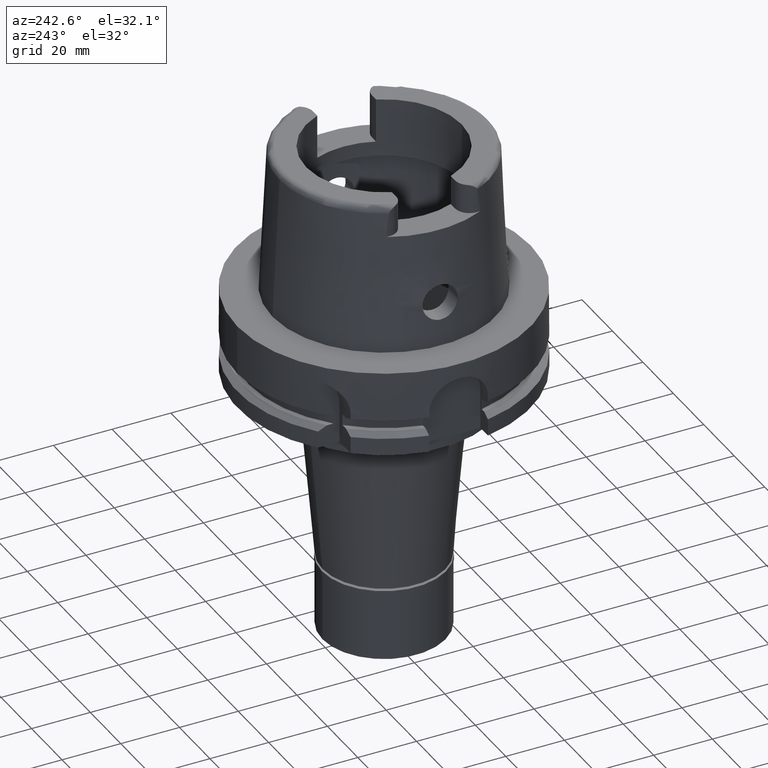
[diagram: clean part render]
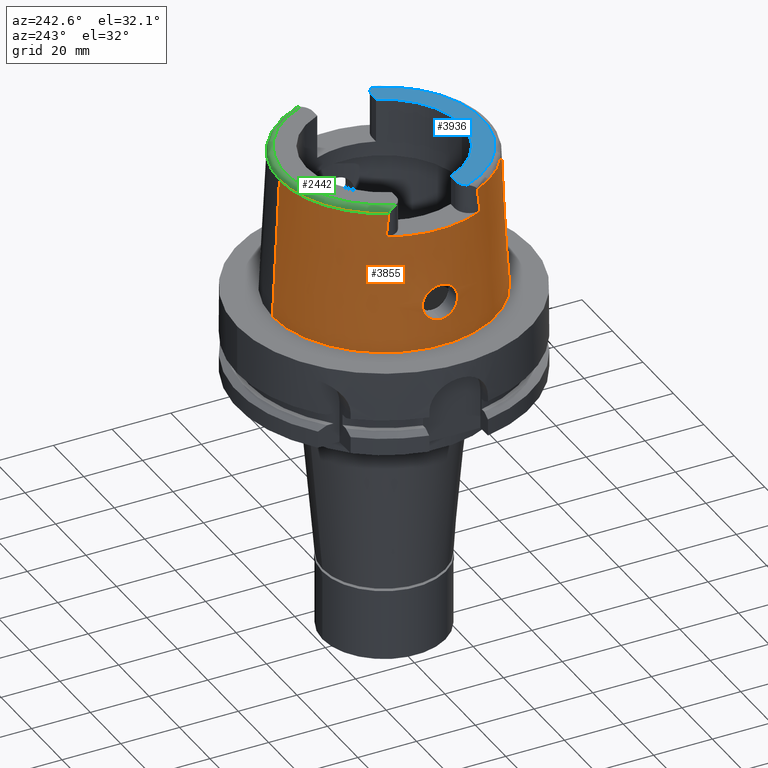
[diagram: same view with three faces highlighted in distinct colors, each labeled with its STEP entity id]
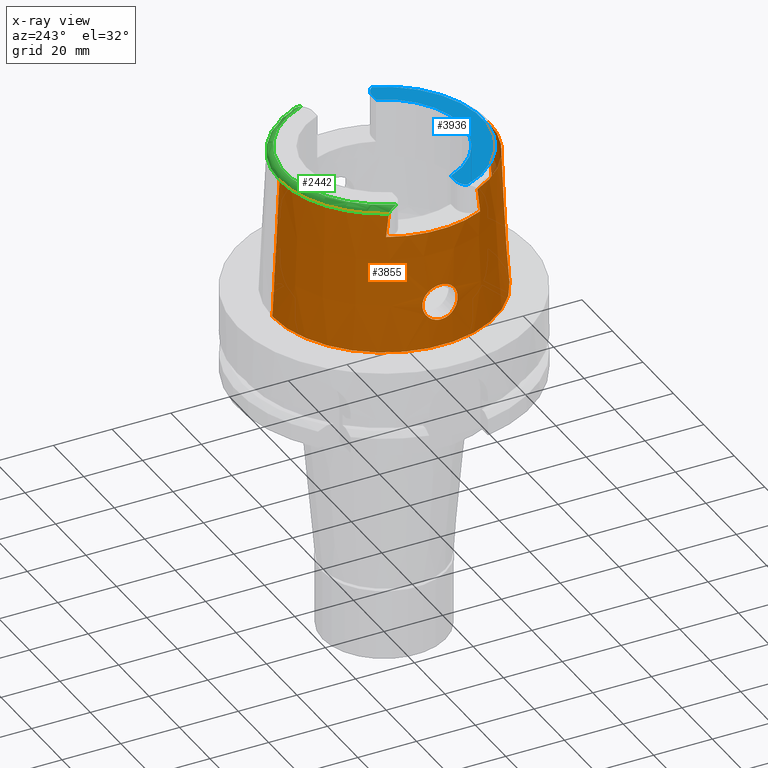
[diagram: x-ray of the same camera — body ghosted, the three highlighted faces saturated]
A machine part, auxiliary view with three faces highlighted in distinct colors.
The next image is the same camera in x-ray (body ghosted, the three faces saturated) — at least one of them is partly hidden behind the body in this view.
Their STEP definitions:

[orange] entity #3855 — the highlighted conical surface has half-angle 2.862 deg.
#74 = CARTESIAN_POINT ( 'NONE',  ( -36.82323053254182099, -5.928898446719235160, 14.05820263418802440 ) ) ;
#93 = DIRECTION ( 'NONE',  ( -5.154182075159067383E-05, 0.04993927430816067631, -0.9987522546783135224 ) ) ;
#99 = CARTESIAN_POINT ( 'NONE',  ( -36.78806355114863891, -4.334804514508003415, 19.14860261943403330 ) ) ;
#125 = CARTESIAN_POINT ( 'NONE',  ( -36.78458644027435298, -5.988938491142030252, 14.62432687633927841 ) ) ;
#147 = CARTESIAN_POINT ( 'NONE',  ( -36.94998175923002037, 0.3625530828962160723, 20.99999999999999645 ) ) ;
#152 = CARTESIAN_POINT ( 'NONE',  ( 0.0000000000000000000, 0.0000000000000000000, 24.04993926899999934 ) ) ;
#154 = CARTESIAN_POINT ( 'NONE',  ( -36.71772473533123815, -5.806545509361297874, 16.52425293398086481 ) ) ;
#159 = DIRECTION ( 'NONE',  ( 0.0000000000000000000, 0.0000000000000000000, -1.000000000000000000 ) ) ;
#160 = DIRECTION ( 'NONE',  ( 0.0000000000000000000, 0.0000000000000000000, -1.000000000000000000 ) ) ;
#174 = CARTESIAN_POINT ( 'NONE',  ( -37.12651440330315467, 4.772817024837427979, 11.35867736530579108 ) ) ;
#180 = CARTESIAN_POINT ( 'NONE',  ( -36.71866671528340476, -5.559942427495455419, 17.25545552190173737 ) ) ;
#197 = CARTESIAN_POINT ( 'NONE',  ( -36.89727382803676647, 5.729162100124217893, 13.21477445473619561 ) ) ;
#207 = ORIENTED_EDGE ( 'NONE', *, *, #4300, .T. ) ;
#231 = CARTESIAN_POINT ( 'NONE',  ( -36.75584463476618424, 4.819543727734532546, 18.59512418605630302 ) ) ;
#259 = CARTESIAN_POINT ( 'NONE',  ( -36.79474497173109881, 4.232642058124912232, 19.25263360903638343 ) ) ;
#278 = ORIENTED_EDGE ( 'NONE', *, *, #4580, .F. ) ;
#284 = CARTESIAN_POINT ( 'NONE',  ( -36.85212044561652078, 5.861051677551132322, 13.70146080967732161 ) ) ;
#316 = CARTESIAN_POINT ( 'NONE',  ( -37.45410590421445107, 2.329128466138336684, 9.470508544732272327 ) ) ;
#349 = CARTESIAN_POINT ( 'NONE',  ( -37.31960718106078190, 3.599675741247676974, 10.18345998590923784 ) ) ;
#357 = CARTESIAN_POINT ( 'NONE',  ( -37.54240590495769681, -0.7521085881209685908, 9.034675656103059893 ) ) ;
#414 = CARTESIAN_POINT ( 'NONE',  ( -36.89521840593706514, 2.445992661388042055, 20.48121353608349793 ) ) ;
#436 = CARTESIAN_POINT ( 'NONE',  ( -32.24999999999000266, 15.99793480980999938, 40.00000000000000000 ) ) ;
#439 = CARTESIAN_POINT ( 'NONE',  ( -37.24834836089080170, -4.072646202234709634, 10.59326355189902102 ) ) ;
#463 = CARTESIAN_POINT ( 'NONE',  ( -37.14434780643751566, -4.681249994448835494, 11.24558708217966974 ) ) ;
#486 = CARTESIAN_POINT ( 'NONE',  ( -36.90004238906206524, -2.329351892019352999, 20.52945065228578159 ) ) ;
#505 = EDGE_CURVE ( 'NONE', #648, #2607, #2250, .T. ) ;
#512 = CARTESIAN_POINT ( 'NONE',  ( -36.71887498289657970, -5.552344025285385953, 17.27409337895980457 ) ) ;
#529 = CARTESIAN_POINT ( 'NONE',  ( -36.91472681731986683, 1.953215262175065803, 20.67484332005664172 ) ) ;
#534 = CARTESIAN_POINT ( 'NONE',  ( -36.77996457801942398, -4.459916177920443481, 19.01400444066961626 ) ) ;
#561 = CARTESIAN_POINT ( 'NONE',  ( -36.88068028734917192, -2.761346901053683744, 20.32774199932568493 ) ) ;
#584 = CARTESIAN_POINT ( 'NONE',  ( -37.07376642524501875, 5.030576920797455998, 11.72990883013981289 ) ) ;
#592 = CARTESIAN_POINT ( 'NONE',  ( -37.13272031619708002, -4.742310806695980041, 11.32301671466228221 ) ) ;
#615 = CARTESIAN_POINT ( 'NONE',  ( -36.72001506501114676, 5.514389833981616640, 17.36480799635775440 ) ) ;
#632 = B_SPLINE_CURVE_WITH_KNOTS ( 'NONE', 3,
 ( #5565, #2467, #357, #1661, #1304, #3376, #4250, #4651, #853, #800, #2048, #3822, #5504, #823, #1628, #3405, #5134, #1272, #2971, #2158, #439, #2133, #5166, #3005, #4733, #2574, #4306, #3876, #463, #592, #1407, #2264, #1429, #4437, #1773, #3981, #2294, #3482, #2651, #985, #5218, #962, #74, #4834, #4361, #125, #1845, #3530, #2674, #1356, #5275, #3583, #3054, #3136, #154, #907, #4386, #4011, #3110, #3557, #180, #5298, #512, #4782, #4859, #3035, #935, #3925, #2210, #534, #1008, #99, #2235, #3503, #3949, #1793, #4756, #5242, #2593, #4408, #2699, #1818, #4813, #561, #1865, #1334, #4334, #1377, #486, #2185, #3904, #2621 ),
 .UNSPECIFIED., .F., .F.,
 ( 4, 2, 2, 1, 1, 1, 1, 2, 2, 2, 2, 2, 1, 1, 1, 2, 2, 2, 2, 2, 2, 1, 1, 2, 2, 2, 2, 2, 1, 2, 2, 2, 2, 1, 1, 1, 1, 2, 2, 2, 2, 2, 1, 1, 2, 2, 2, 2, 2, 2, 1, 1, 2, 2, 4 ),
 ( 0.0000000000000000000, 0.06249999999997644939, 0.09374999999996466715, 0.1093749999999588107, 0.1171874999999558548, 0.1210937499999544115, 0.1230468749999537176, 0.1240234374999534123, 0.1249999999999530931, 0.1874999999999317490, 0.2187499999999210909, 0.2343749999999158729, 0.2421874999999132916, 0.2460937499999119871, 0.2480468749999114042, 0.2490234374999110989, 0.2499999999999108491, 0.2812499999999007461, 0.2968749999998956945, 0.3124999999998906430, 0.3437499999998804290, 0.3593749999998754885, 0.3671874999998731570, 0.3710937499998720468, 0.3749999999998709366, 0.4374999999998541167, 0.4687499999998456235, 0.4843749999998413491, 0.4921874999998391842, 0.4960937499998379629, 0.4999999999998366862, 0.5624999999998174793, 0.5937499999998081535, 0.6093749999998038236, 0.6171874999998016031, 0.6210937499998006039, 0.6230468749998000488, 0.6240234374998000488, 0.6249999999998000488, 0.6874999999998262501, 0.7187499999998395728, 0.7343749999998464562, 0.7421874999998496758, 0.7460937499998513411, 0.7480468749998523403, 0.7499999999998533395, 0.7812499999998714362, 0.7968749999998803180, 0.8124999999998891997, 0.8437499999999069633, 0.8593749999999157341, 0.8671874999999202860, 0.8710937499999227285, 0.8749999999999250599, 1.000000000000000000 ),
 .UNSPECIFIED. ) ;
#641 = CARTESIAN_POINT ( 'NONE',  ( -36.84040567949706713, 3.503068769462873711, 19.87516859753196741 ) ) ;
#648 = VERTEX_POINT ( 'NONE', #3970 ) ;
#657 = DIRECTION ( 'NONE',  ( 0.0000000000000000000, 0.0000000000000000000, 1.000000000000000000 ) ) ;
#665 = CARTESIAN_POINT ( 'NONE',  ( -0.002482252536761000127, -35.59494263424999616, 48.09987853799000135 ) ) ;
#668 = ORIENTED_EDGE ( 'NONE', *, *, #4220, .T. ) ;
#675 = CARTESIAN_POINT ( 'NONE',  ( -37.03007041005652411, 5.228520862677724423, 12.05485319187040183 ) ) ;
#706 = CARTESIAN_POINT ( 'NONE',  ( -36.94750774145884975, 5.557276259539285057, 12.73798230509179419 ) ) ;
#768 = AXIS2_PLACEMENT_3D ( 'NONE', #813, #2959, #3274 ) ;
#792 = CARTESIAN_POINT ( 'NONE',  ( -37.55000165825000380, 0.7490178607477463446, 9.000000000000019540 ) ) ;
#800 = CARTESIAN_POINT ( 'NONE',  ( -37.46214979876041440, -2.230592256434670961, 9.430014596436990360 ) ) ;
#813 = CARTESIAN_POINT ( 'NONE',  ( 0.0000000000000000000, 0.0000000000000000000, 40.00000000000000000 ) ) ;
#815 = CARTESIAN_POINT ( 'NONE',  ( -37.20947559739986588, 4.311750673023866831, 10.82748602044353348 ) ) ;
#823 = CARTESIAN_POINT ( 'NONE',  ( -37.43522730255040187, -2.562830791563071919, 9.565764569917137194 ) ) ;
#853 = CARTESIAN_POINT ( 'NONE',  ( -37.46539505468363984, -2.189546546671889526, 9.413677403951398404 ) ) ;
#881 = CARTESIAN_POINT ( 'NONE',  ( -32.25000136840999687, 15.06443227098000115, 48.09991931569999934 ) ) ;
#901 = B_SPLINE_CURVE_WITH_KNOTS ( 'NONE', 3,
 ( #881, #3479, #3946, #436 ),
 .UNSPECIFIED., .F., .F.,
 ( 4, 4 ),
 ( 0.0000000000000000000, 1.000000000000000000 ),
 .UNSPECIFIED. ) ;
#907 = CARTESIAN_POINT ( 'NONE',  ( -36.71651103040085218, -5.721565896731878098, 16.80928525366041626 ) ) ;
#935 = CARTESIAN_POINT ( 'NONE',  ( -36.75586994245404782, -4.838335472143019622, 18.55471004757326270 ) ) ;
#962 = CARTESIAN_POINT ( 'NONE',  ( -36.87049377223768687, -5.817060440741482985, 13.47780286828509233 ) ) ;
#967 = CARTESIAN_POINT ( 'NONE',  ( 0.0000000000000000000, 0.0000000000000000000, 48.09987853799000135 ) ) ;
#974 = ORIENTED_EDGE ( 'NONE', *, *, #2712, .F. ) ;
#984 = DIRECTION ( 'NONE',  ( 0.0000000000000000000, -1.000000000000000000, 0.0000000000000000000 ) ) ;
#985 = CARTESIAN_POINT ( 'NONE',  ( -36.95600250641084017, -5.526063157198407794, 12.66262127946670901 ) ) ;
#1001 = CARTESIAN_POINT ( 'NONE',  ( -36.92226913909367170, 5.646499751244001608, 12.97028938156317857 ) ) ;
#1008 = CARTESIAN_POINT ( 'NONE',  ( -36.78361863460155945, -4.403344612032119798, 19.07629590768654637 ) ) ;
#1033 = CARTESIAN_POINT ( 'NONE',  ( -36.75505347406960510, 5.997716341744668611, 15.17710992440290063 ) ) ;
#1062 = CARTESIAN_POINT ( 'NONE',  ( -36.71608582468578419, 5.811464284901324717, 16.54260245714784361 ) ) ;
#1080 = ORIENTED_EDGE ( 'NONE', *, *, #2036, .F. ) ;
#1085 = ORIENTED_EDGE ( 'NONE', *, *, #4897, .F. ) ;
#1086 = CARTESIAN_POINT ( 'NONE',  ( -36.71962094226965689, 5.526971895336172835, 17.33510102494406269 ) ) ;
#1116 = CARTESIAN_POINT ( 'NONE',  ( -36.90703009047484784, 5.697815864059324831, 13.11701489096465956 ) ) ;
#1148 = CARTESIAN_POINT ( 'NONE',  ( -37.42163854930025479, 2.690703665676798195, 9.636361813314190172 ) ) ;
#1159 = CARTESIAN_POINT ( 'NONE',  ( 0.0000000000000000000, 0.0000000000000000000, 1.023181539494999863E-12 ) ) ;
#1188 = VERTEX_POINT ( 'NONE', #4384 ) ;
#1205 = CARTESIAN_POINT ( 'NONE',  ( -37.19924154122887927, 4.371588547730605789, 10.88983201291727276 ) ) ;
#1209 = B_SPLINE_CURVE_WITH_KNOTS ( 'NONE', 3,
 ( #5454, #4471, #1941, #1495 ),
 .UNSPECIFIED., .F., .F.,
 ( 4, 4 ),
 ( 0.0000000000000000000, 1.000000000000000000 ),
 .UNSPECIFIED. ) ;
#1272 = CARTESIAN_POINT ( 'NONE',  ( -37.28906989596441690, -3.798679550567368501, 10.35440113730646772 ) ) ;
#1304 = CARTESIAN_POINT ( 'NONE',  ( -37.51012395346545247, -1.514929515691207484, 9.191016675842400119 ) ) ;
#1334 = CARTESIAN_POINT ( 'NONE',  ( -36.89414134896049546, -2.467613667936710886, 20.46949269435930674 ) ) ;
#1356 = CARTESIAN_POINT ( 'NONE',  ( -36.76648188795494576, -5.999790168387596268, 14.94493406312051498 ) ) ;
#1377 = CARTESIAN_POINT ( 'NONE',  ( -36.89910512635219675, -2.351632174535876363, 20.52000609469344283 ) ) ;
#1407 = CARTESIAN_POINT ( 'NONE',  ( -37.10938749677767134, -4.860543352740099188, 11.48079040350074465 ) ) ;
#1424 = CARTESIAN_POINT ( 'NONE',  ( -36.72203813082273882, 5.457135337629697602, 17.49432021524069469 ) ) ;
#1429 = CARTESIAN_POINT ( 'NONE',  ( -37.06280216228815760, -5.081531646634132926, 11.80379148822379420 ) ) ;
#1451 = CARTESIAN_POINT ( 'NONE',  ( -36.81702524797315590, 3.889233919126076966, 19.56985223358480042 ) ) ;
#1464 = DIRECTION ( 'NONE',  ( 0.0000000000000000000, -1.000000000000000000, 0.0000000000000000000 ) ) ;
#1467 = CIRCLE ( 'NONE', #768, 35.99995025243999436 ) ;
#1481 = CARTESIAN_POINT ( 'NONE',  ( -36.74213964348327011, 5.980926611880625465, 15.48764060818529842 ) ) ;
#1495 = CARTESIAN_POINT ( 'NONE',  ( -32.24999491821000674, -15.06448486686999821, 48.09973212223000161 ) ) ;
#1509 = CARTESIAN_POINT ( 'NONE',  ( -36.86921435064590469, 5.814922362280488422, 13.50735389710117040 ) ) ;
#1535 = CARTESIAN_POINT ( 'NONE',  ( -36.73210532583734533, 5.234034322780340531, 17.93912450253122870 ) ) ;
#1593 = ORIENTED_EDGE ( 'NONE', *, *, #1601, .T. ) ;
#1597 = CARTESIAN_POINT ( 'NONE',  ( -37.51912376612243349, 1.534334099841992982, 9.142233514533149474 ) ) ;
#1601 = EDGE_CURVE ( 'NONE', #1188, #2624, #5186, .T. ) ;
#1628 = CARTESIAN_POINT ( 'NONE',  ( -37.40392699024293677, -2.880923400469384887, 9.722350364813502566 ) ) ;
#1661 = CARTESIAN_POINT ( 'NONE',  ( -37.51961864508080424, -1.324043857284014525, 9.144694856111923897 ) ) ;
#1662 = CARTESIAN_POINT ( 'NONE',  ( -36.90494167551282345, 2.209907510113605866, 20.57830793970426342 ) ) ;
#1680 = CARTESIAN_POINT ( 'NONE',  ( -37.44036453825258093, 2.488648057273405989, 9.540274471321605887 ) ) ;
#1738 = EDGE_CURVE ( 'NONE', #4501, #4208, #1467, .T. ) ;
#1758 = EDGE_LOOP ( 'NONE', ( #278, #4309 ) ) ;
#1773 = CARTESIAN_POINT ( 'NONE',  ( -37.00699242216460760, -5.324828791349577095, 12.23305031580818536 ) ) ;
#1793 = CARTESIAN_POINT ( 'NONE',  ( -36.80167286437482232, -4.125561637143138505, 19.36105291350262547 ) ) ;
#1811 = CARTESIAN_POINT ( 'NONE',  ( -36.90196328842325357, 2.283153517364590268, 20.54862627285229593 ) ) ;
#1818 = CARTESIAN_POINT ( 'NONE',  ( -36.85852667640532587, -3.191917643932927540, 20.08423192527659396 ) ) ;
#1839 = CARTESIAN_POINT ( 'NONE',  ( -36.93380744896299461, 1.318756057433612350, 20.85656974759320903 ) ) ;
#1845 = CARTESIAN_POINT ( 'NONE',  ( -36.77646455067684883, -5.995478475698588383, 14.76258373251643619 ) ) ;
#1859 = CARTESIAN_POINT ( 'NONE',  ( -36.72707934913572814, 5.924718354311669266, 15.96741784713380596 ) ) ;
#1865 = CARTESIAN_POINT ( 'NONE',  ( -36.88702728852544510, -2.627696777744658707, 20.39563734788138305 ) ) ;
#1887 = CARTESIAN_POINT ( 'NONE',  ( -36.93937016641403659, 5.586668613508995129, 12.81131469429450220 ) ) ;
#1900 = ORIENTED_EDGE ( 'NONE', *, *, #1738, .T. ) ;
#1925 = CARTESIAN_POINT ( 'NONE',  ( -36.72427023903356513, 5.401041224605394930, 17.61468763097502332 ) ) ;
#1941 = CARTESIAN_POINT ( 'NONE',  ( -32.25000000000000000, -15.37363593509190451, 45.48304330232944892 ) ) ;
#1949 = DIRECTION ( 'NONE',  ( 5.154182075151068004E-05, -0.04993927430816067631, -0.9987522546783135224 ) ) ;
#1956 = CARTESIAN_POINT ( 'NONE',  ( -37.10339373912722749, 4.890162636329169032, 11.51785665528968572 ) ) ;
#1980 = CARTESIAN_POINT ( 'NONE',  ( -36.83106466261710921, 3.661232658126593709, 19.75753455909572764 ) ) ;
#1981 = B_SPLINE_CURVE_WITH_KNOTS ( 'NONE', 3,
 ( #2073, #147, #2648, #1839, #3793, #2551, #529, #5540, #1662, #4284, #2946, #1811, #3378, #414, #2109, #3824, #2136, #2752, #4919, #3243, #4062, #3164, #4483, #641, #1980, #1451, #2339, #5351, #4550, #4887, #259, #2400, #2692, #231, #2314, #1535, #3689, #1925, #1424, #3130, #615, #1086, #2726, #4517, #3664, #1062, #1859, #2372, #1481, #4975, #1033, #3637, #4461, #4032, #5382, #4118, #284, #1509, #197, #1116, #1001, #4431, #1887, #2816, #3609, #706, #3219, #4944, #5405, #2287, #675, #2780, #3193, #4852, #584, #4095, #4005, #1956, #174, #3576, #5318, #1205, #815, #5555, #2908, #2040, #4641, #349, #3275, #4178, #1148, #2062, #1680, #3752, #3776, #316, #5059, #5496, #1597, #792, #2484 ),
 .UNSPECIFIED., .F., .F.,
 ( 4, 2, 2, 1, 1, 1, 1, 2, 2, 2, 2, 1, 1, 2, 2, 2, 1, 1, 1, 2, 2, 2, 2, 2, 1, 1, 2, 2, 2, 2, 1, 1, 2, 2, 2, 2, 2, 1, 1, 1, 2, 2, 2, 2, 1, 1, 2, 2, 2, 1, 1, 1, 2, 2, 2, 2, 2, 1, 1, 2, 2, 4 ),
 ( 0.0000000000000000000, 0.06249999999998158418, 0.09374999999997232769, 0.1093749999999676231, 0.1171874999999652778, 0.1210937499999640982, 0.1230468749999634875, 0.1240234374999631961, 0.1249999999999628908, 0.1562499999999565625, 0.1718749999999532874, 0.1796874999999517053, 0.1835937499999510392, 0.1855468749999505673, 0.1874999999999500955, 0.2187499999999438782, 0.2343749999999405753, 0.2421874999999386602, 0.2460937499999379108, 0.2480468749999377442, 0.2499999999999375500, 0.3124999999999294453, 0.3437499999999253375, 0.3593749999999232836, 0.3671874999999220623, 0.3710937499999216738, 0.3730468749999217848, 0.3749999999999218403, 0.4374999999999217293, 0.4687499999999216183, 0.4843749999999215627, 0.4921874999999216738, 0.4960937499999218958, 0.4999999999999220623, 0.5624999999999246159, 0.5937499999999259481, 0.6093749999999266143, 0.6171874999999269473, 0.6210937499999271694, 0.6230468749999271694, 0.6240234374999272804, 0.6249999999999272804, 0.6562499999999306111, 0.6718749999999323874, 0.6796874999999333866, 0.6835937499999339417, 0.6855468749999342748, 0.6874999999999344968, 0.7187499999999399369, 0.7343749999999428235, 0.7421874999999442668, 0.7460937499999450440, 0.7480468749999453770, 0.7499999999999455991, 0.8124999999999582556, 0.8437499999999644729, 0.8593749999999675815, 0.8671874999999691358, 0.8710937499999699130, 0.8730468749999704681, 0.8749999999999710232, 1.000000000000000000 ),
 .UNSPECIFIED. ) ;
#2009 = VERTEX_POINT ( 'NONE', #2355 ) ;
#2036 = EDGE_CURVE ( 'NONE', #4501, #2607, #1209, .T. ) ;
#2040 = CARTESIAN_POINT ( 'NONE',  ( -37.21805258336363664, 4.261073852434161147, 10.77584950298933819 ) ) ;
#2048 = CARTESIAN_POINT ( 'NONE',  ( -37.46074228490572722, -2.248166542641697685, 9.437106227247255674 ) ) ;
#2062 = CARTESIAN_POINT ( 'NONE',  ( -37.42938732668184088, 2.609458096537846217, 9.596425585937925717 ) ) ;
#2073 = CARTESIAN_POINT ( 'NONE',  ( -36.94998175923000616, 0.0000000000000000000, 21.00000000000000000 ) ) ;
#2094 = VECTOR ( 'NONE', #93, 1000.000000000000227 ) ;
#2109 = CARTESIAN_POINT ( 'NONE',  ( -36.88778730094655600, 2.610192355735712955, 20.40610607300494905 ) ) ;
#2133 = CARTESIAN_POINT ( 'NONE',  ( -37.23677949613533400, -4.145916836684778062, 10.66262233058566267 ) ) ;
#2136 = CARTESIAN_POINT ( 'NONE',  ( -36.87024605534370636, 2.963125089998518202, 20.21837617417015665 ) ) ;
#2158 = CARTESIAN_POINT ( 'NONE',  ( -37.25799470659903534, -4.009568889744111075, 10.53608802683976542 ) ) ;
#2185 = CARTESIAN_POINT ( 'NONE',  ( -36.93367502611393860, -1.520510553490664885, 20.86597942756079149 ) ) ;
#2202 = EDGE_CURVE ( 'NONE', #3857, #3388, #632, .T. ) ;
#2210 = CARTESIAN_POINT ( 'NONE',  ( -36.77286429403746126, -4.570216296435477332, 18.88914628922124805 ) ) ;
#2235 = CARTESIAN_POINT ( 'NONE',  ( -36.79000748335477056, -4.304880711938232629, 19.17949860754104208 ) ) ;
#2250 = CIRCLE ( 'NONE', #4146, 35.59494289391000166 ) ;
#2264 = CARTESIAN_POINT ( 'NONE',  ( -37.09750579728164155, -4.918543411384063369, 11.56236143669027605 ) ) ;
#2287 = CARTESIAN_POINT ( 'NONE',  ( -37.01852366502950531, 5.277949285620158193, 12.14466026285606226 ) ) ;
#2294 = CARTESIAN_POINT ( 'NONE',  ( -36.97179117213022437, -5.466339013412229164, 12.52541676300970330 ) ) ;
#2314 = CARTESIAN_POINT ( 'NONE',  ( -36.73723323953743858, 5.138946338232154076, 18.10313719434839186 ) ) ;
#2339 = CARTESIAN_POINT ( 'NONE',  ( -36.80999856832018224, 4.000924703224850276, 19.47320503343160070 ) ) ;
#2355 = CARTESIAN_POINT ( 'NONE',  ( 0.0000000000000000000, -38.00001658251999714, 6.892264536873000076E-13 ) ) ;
#2359 = DIRECTION ( 'NONE',  ( 0.0000000000000000000, 1.000000000000000000, 0.0000000000000000000 ) ) ;
#2372 = CARTESIAN_POINT ( 'NONE',  ( -36.73221861327886018, 5.952826895809218755, 15.77521477433226771 ) ) ;
#2378 = CIRCLE ( 'NONE', #3825, 35.59494289391000166 ) ;
#2400 = CARTESIAN_POINT ( 'NONE',  ( -36.79422715349652862, 4.240327904510042600, 19.24497450744234328 ) ) ;
#2424 = CARTESIAN_POINT ( 'NONE',  ( -32.25000136840999687, 15.06443227098000115, 48.09991931569999934 ) ) ;
#2467 = CARTESIAN_POINT ( 'NONE',  ( -37.55000165825001091, -0.3718859561172882522, 8.999999999999992895 ) ) ;
#2484 = CARTESIAN_POINT ( 'NONE',  ( -37.55000165825000380, 1.571614468376999917E-13, 9.000000000000000000 ) ) ;
#2527 = FACE_OUTER_BOUND ( 'NONE', #3162, .T. ) ;
#2551 = CARTESIAN_POINT ( 'NONE',  ( -36.91965492747934974, 1.806464489154442354, 20.72250540861613999 ) ) ;
#2574 = CARTESIAN_POINT ( 'NONE',  ( -37.22571532401068595, -4.214540022104334760, 10.72943910446142191 ) ) ;
#2579 = FACE_BOUND ( 'NONE', #1758, .T. ) ;
#2593 = CARTESIAN_POINT ( 'NONE',  ( -36.82970693592993428, -3.673740623803267713, 19.74482772743009207 ) ) ;
#2607 = VERTEX_POINT ( 'NONE', #5069 ) ;
#2621 = CARTESIAN_POINT ( 'NONE',  ( -36.94998175923000616, 0.0000000000000000000, 21.00000000000000000 ) ) ;
#2624 = VERTEX_POINT ( 'NONE', #4753 ) ;
#2648 = CARTESIAN_POINT ( 'NONE',  ( -36.94593818166325150, 0.7403705539163906169, 20.96707285297079792 ) ) ;
#2651 = CARTESIAN_POINT ( 'NONE',  ( -36.95849678818203188, -5.516754172050340799, 12.64075052970119906 ) ) ;
#2674 = CARTESIAN_POINT ( 'NONE',  ( -36.76888135779360312, -5.999202468009512401, 14.89958053020721529 ) ) ;
#2692 = CARTESIAN_POINT ( 'NONE',  ( -36.77255577042334522, 4.560823762136021919, 18.92335781838107422 ) ) ;
#2699 = CARTESIAN_POINT ( 'NONE',  ( -36.84417110679228813, -3.433609880519924218, 19.92135767012609548 ) ) ;
#2712 = EDGE_CURVE ( 'NONE', #4656, #4208, #901, .T. ) ;
#2726 = CARTESIAN_POINT ( 'NONE',  ( -36.71936659912462630, 5.535288237586788895, 17.31531839179066168 ) ) ;
#2752 = CARTESIAN_POINT ( 'NONE',  ( -36.86288670285292568, 3.101921047889937277, 20.13624141383451516 ) ) ;
#2780 = CARTESIAN_POINT ( 'NONE',  ( -37.04827319182398782, 5.147742072203705277, 11.91721204243837740 ) ) ;
#2816 = CARTESIAN_POINT ( 'NONE',  ( -36.94410147018575685, 5.569637299367250272, 12.76853320077444742 ) ) ;
#2908 = CARTESIAN_POINT ( 'NONE',  ( -37.21679250492024238, 4.268545163422240662, 10.78340485914337954 ) ) ;
#2946 = CARTESIAN_POINT ( 'NONE',  ( -36.90246478681287812, 2.270949496965292358, 20.55363231424932025 ) ) ;
#2959 = DIRECTION ( 'NONE',  ( 0.0000000000000000000, 0.0000000000000000000, -1.000000000000000000 ) ) ;
#2971 = CARTESIAN_POINT ( 'NONE',  ( -37.27692763257257980, -3.883202916129207427, 10.42470260473987764 ) ) ;
#2974 = CARTESIAN_POINT ( 'NONE',  ( -32.24999876011999334, -15.99794043148000000, 40.00000000000000000 ) ) ;
#3005 = CARTESIAN_POINT ( 'NONE',  ( -37.22838673060392978, -4.198091024196533461, 10.71326638967439671 ) ) ;
#3035 = CARTESIAN_POINT ( 'NONE',  ( -36.74861974175637158, -4.956112430334767005, 18.38749210288566616 ) ) ;
#3054 = CARTESIAN_POINT ( 'NONE',  ( -36.73132168275584064, -5.964948906927532768, 15.75659294445787317 ) ) ;
#3110 = CARTESIAN_POINT ( 'NONE',  ( -36.71806824846890294, -5.583303181085889300, 17.19723156348164395 ) ) ;
#3124 = LINE ( 'NONE', #665, #3517 ) ;
#3130 = CARTESIAN_POINT ( 'NONE',  ( -36.72102294090885266, 5.484272630724222886, 17.43434923281128590 ) ) ;
#3136 = CARTESIAN_POINT ( 'NONE',  ( -36.72001392922916807, -5.853387202398482536, 16.33271165120686064 ) ) ;
#3162 = EDGE_LOOP ( 'NONE', ( #974, #668, #1593, #207, #1085, #4070, #1080, #1900 ) ) ;
#3164 = CARTESIAN_POINT ( 'NONE',  ( -36.85109884645161316, 3.315402656914996360, 20.00083115363363007 ) ) ;
#3193 = CARTESIAN_POINT ( 'NONE',  ( -37.05759524876443578, 5.105693507571799294, 11.84766052568536843 ) ) ;
#3219 = CARTESIAN_POINT ( 'NONE',  ( -36.94833908019818125, 5.554246825165506607, 12.73055754894398284 ) ) ;
#3243 = CARTESIAN_POINT ( 'NONE',  ( -36.85447686725796501, 3.255433226915352307, 20.04019644346395523 ) ) ;
#3274 = DIRECTION ( 'NONE',  ( -0.8958345712659759874, -0.4443876921390880197, 0.0000000000000000000 ) ) ;
#3275 = CARTESIAN_POINT ( 'NONE',  ( -37.37901893538266762, 3.101641266835791999, 9.860058148263993516 ) ) ;
#3376 = CARTESIAN_POINT ( 'NONE',  ( -37.49303350855777239, -1.800029426377532715, 9.275515853927242205 ) ) ;
#3378 = CARTESIAN_POINT ( 'NONE',  ( -36.90165384163184115, 2.290647859511804718, 20.54553499156103058 ) ) ;
#3388 = VERTEX_POINT ( 'NONE', #4024 ) ;
#3405 = CARTESIAN_POINT ( 'NONE',  ( -37.34546402760852857, -3.377013938155778217, 10.03672455033063216 ) ) ;
#3471 = AXIS2_PLACEMENT_3D ( 'NONE', #152, #5141, #984 ) ;
#3479 = CARTESIAN_POINT ( 'NONE',  ( -32.25000000000000000, 15.37357338416263985, 45.48332195153660962 ) ) ;
#3482 = CARTESIAN_POINT ( 'NONE',  ( -36.96380502776975163, -5.496748277571383845, 12.59450773625105313 ) ) ;
#3503 = CARTESIAN_POINT ( 'NONE',  ( -36.79131209770811495, -4.284808839412508341, 19.20007378079810323 ) ) ;
#3517 = VECTOR ( 'NONE', #1949, 1000.000000000000227 ) ;
#3530 = CARTESIAN_POINT ( 'NONE',  ( -36.77255751922503180, -5.997932684345628651, 14.83136030590121024 ) ) ;
#3557 = CARTESIAN_POINT ( 'NONE',  ( -36.71847806941791248, -5.567011253225900624, 17.23800388043489207 ) ) ;
#3576 = CARTESIAN_POINT ( 'NONE',  ( -37.16135052197552113, 4.585456086696408029, 11.12916731211390520 ) ) ;
#3583 = CARTESIAN_POINT ( 'NONE',  ( -36.74478041421753005, -6.000619882575237263, 15.37058923311013814 ) ) ;
#3586 = DIRECTION ( 'NONE',  ( -0.9060276961631030801, 0.4232183996300014628, 0.0000000000000000000 ) ) ;
#3609 = CARTESIAN_POINT ( 'NONE',  ( -36.94614334340285211, 5.562234521405725829, 12.75020209667641247 ) ) ;
#3637 = CARTESIAN_POINT ( 'NONE',  ( -36.75843241105401660, 5.999115404914252991, 15.10573356944298951 ) ) ;
#3664 = CARTESIAN_POINT ( 'NONE',  ( -36.71465583235838182, 5.697277598128047238, 16.92420995161979036 ) ) ;
#3689 = CARTESIAN_POINT ( 'NONE',  ( -36.72602728235146685, 5.361218751864933019, 17.69550097904032171 ) ) ;
#3752 = CARTESIAN_POINT ( 'NONE',  ( -37.44569165541255984, 2.428507131119322260, 9.513137093000617384 ) ) ;
#3776 = CARTESIAN_POINT ( 'NONE',  ( -37.45162402033803772, 2.358860455521837540, 9.483063319803074265 ) ) ;
#3793 = CARTESIAN_POINT ( 'NONE',  ( -36.92875297700454240, 1.513445603867381806, 20.80956201559139629 ) ) ;
#3822 = CARTESIAN_POINT ( 'NONE',  ( -37.45980023347200927, -2.259878942530978652, 9.441853987570146600 ) ) ;
#3824 = CARTESIAN_POINT ( 'NONE',  ( -36.87485461971291301, 2.872858800242176880, 20.26843943359907385 ) ) ;
#3825 = AXIS2_PLACEMENT_3D ( 'NONE', #4016, #159, #3586 ) ;
#3855 = ADVANCED_FACE ( 'NONE', ( #2527, #2579 ), #4000, .T. ) ;
#3857 = VERTEX_POINT ( 'NONE', #4660 ) ;
#3876 = CARTESIAN_POINT ( 'NONE',  ( -37.17911351875109460, -4.492456376756836178, 11.01795188690161531 ) ) ;
#3904 = CARTESIAN_POINT ( 'NONE',  ( -36.94998175923000616, -0.7275959662226680891, 21.00000000000000000 ) ) ;
#3925 = CARTESIAN_POINT ( 'NONE',  ( -36.76840787695926593, -4.639957764230191906, 18.80554271582764869 ) ) ;
#3946 = CARTESIAN_POINT ( 'NONE',  ( -32.25000000000000000, 15.68473281745264103, 42.78334884630327650 ) ) ;
#3949 = CARTESIAN_POINT ( 'NONE',  ( -36.79206450369854764, -4.273239621631045537, 19.21183756112960239 ) ) ;
#3970 = CARTESIAN_POINT ( 'NONE',  ( 1.065814103639999922E-14, -35.59494289391000166, 48.09987853799000135 ) ) ;
#3981 = CARTESIAN_POINT ( 'NONE',  ( -36.99059200382356494, -5.392620126817299742, 12.36614552763649044 ) ) ;
#4000 = CONICAL_SURFACE ( 'NONE', #3471, 36.79747973821000073, 0.04996004983832824653 ) ;
#4005 = CARTESIAN_POINT ( 'NONE',  ( -37.07893791181299292, 5.006200936623738329, 11.69271945909917321 ) ) ;
#4011 = CARTESIAN_POINT ( 'NONE',  ( -36.71737001751944263, -5.615079041531235049, 17.11548522742446465 ) ) ;
#4016 = CARTESIAN_POINT ( 'NONE',  ( 0.0000000000000000000, 0.0000000000000000000, 48.09987853799000135 ) ) ;
#4024 = CARTESIAN_POINT ( 'NONE',  ( -36.94998175923000616, 0.0000000000000000000, 21.00000000000000000 ) ) ;
#4032 = CARTESIAN_POINT ( 'NONE',  ( -36.76196998194413368, 5.999950462288237141, 15.03311701700915926 ) ) ;
#4062 = CARTESIAN_POINT ( 'NONE',  ( -36.85245563609835528, 3.291381255056374577, 20.01667384214831813 ) ) ;
#4070 = ORIENTED_EDGE ( 'NONE', *, *, #505, .T. ) ;
#4095 = CARTESIAN_POINT ( 'NONE',  ( -37.07705766593912244, 5.015089642991354957, 11.70620639869186341 ) ) ;
#4118 = CARTESIAN_POINT ( 'NONE',  ( -36.80567597022191961, 5.969096933667815463, 14.27722411537686931 ) ) ;
#4146 = AXIS2_PLACEMENT_3D ( 'NONE', #967, #160, #1464 ) ;
#4178 = CARTESIAN_POINT ( 'NONE',  ( -37.39710030815228947, 2.936002989195695800, 9.764172490992732989 ) ) ;
#4208 = VERTEX_POINT ( 'NONE', #4900 ) ;
#4220 = EDGE_CURVE ( 'NONE', #4656, #1188, #2378, .T. ) ;
#4250 = CARTESIAN_POINT ( 'NONE',  ( -37.48377618423278790, -1.942269965840027535, 9.321517119978837584 ) ) ;
#4284 = CARTESIAN_POINT ( 'NONE',  ( -36.90321407279265031, 2.252641253286892464, 20.56110702135690715 ) ) ;
#4300 = EDGE_CURVE ( 'NONE', #2624, #2009, #4339, .T. ) ;
#4306 = CARTESIAN_POINT ( 'NONE',  ( -37.20213498241644601, -4.359108075521084480, 10.87240405822711686 ) ) ;
#4309 = ORIENTED_EDGE ( 'NONE', *, *, #2202, .F. ) ;
#4334 = CARTESIAN_POINT ( 'NONE',  ( -36.89712792323182811, -2.398138878909001459, 20.49996100779180708 ) ) ;
#4335 = AXIS2_PLACEMENT_3D ( 'NONE', #1159, #657, #2359 ) ;
#4339 = CIRCLE ( 'NONE', #4335, 38.00001658251999714 ) ;
#4361 = CARTESIAN_POINT ( 'NONE',  ( -36.79041146893118963, -5.982402918884362819, 14.53121651652974933 ) ) ;
#4384 = CARTESIAN_POINT ( 'NONE',  ( 0.0000000000000000000, 35.59494289391000166, 48.09987853799000135 ) ) ;
#4386 = CARTESIAN_POINT ( 'NONE',  ( -36.71645919941475711, -5.675399250357643588, 16.95123020784668455 ) ) ;
#4408 = CARTESIAN_POINT ( 'NONE',  ( -36.83926700325469739, -3.515537323824483806, 19.86320446401021300 ) ) ;
#4431 = CARTESIAN_POINT ( 'NONE',  ( -36.93003982714348865, 5.619767702773692974, 12.89690540992613599 ) ) ;
#4437 = CARTESIAN_POINT ( 'NONE',  ( -37.04017381850891155, -5.183470962721296260, 11.97165430857646662 ) ) ;
#4461 = CARTESIAN_POINT ( 'NONE',  ( -36.76073112183507874, 5.999764935412327027, 15.05818890773522867 ) ) ;
#4471 = CARTESIAN_POINT ( 'NONE',  ( -32.25000000000000000, -15.68478778996190393, 42.78313259491945075 ) ) ;
#4483 = CARTESIAN_POINT ( 'NONE',  ( -36.85031075499417597, 3.329284408422839459, 19.99159460821353562 ) ) ;
#4501 = VERTEX_POINT ( 'NONE', #2974 ) ;
#4517 = CARTESIAN_POINT ( 'NONE',  ( -36.71926452124244378, 5.538691695228581402, 17.30717404516997959 ) ) ;
#4550 = CARTESIAN_POINT ( 'NONE',  ( -36.79768052616378782, 4.188867250487152027, 19.29586440770477296 ) ) ;
#4580 = EDGE_CURVE ( 'NONE', #3388, #3857, #1981, .T. ) ;
#4641 = CARTESIAN_POINT ( 'NONE',  ( -37.27310916349558312, 3.933555580454631606, 10.44701362575828618 ) ) ;
#4651 = CARTESIAN_POINT ( 'NONE',  ( -37.47172979424576766, -2.107305038829402566, 9.381841795950792928 ) ) ;
#4656 = VERTEX_POINT ( 'NONE', #2424 ) ;
#4660 = CARTESIAN_POINT ( 'NONE',  ( -37.55000165825000380, 1.571614468376999917E-13, 9.000000000000000000 ) ) ;
#4733 = CARTESIAN_POINT ( 'NONE',  ( -37.22669656007188621, -4.208509957460470297, 10.72349474087886101 ) ) ;
#4753 = CARTESIAN_POINT ( 'NONE',  ( 0.0000000000000000000, 38.00001658251999714, 1.023181539494999863E-12 ) ) ;
#4756 = CARTESIAN_POINT ( 'NONE',  ( -36.81088832880936934, -3.979627933596954215, 19.49461932160430422 ) ) ;
#4782 = CARTESIAN_POINT ( 'NONE',  ( -36.72234453902033380, -5.429232063651923568, 17.57396819197401427 ) ) ;
#4813 = CARTESIAN_POINT ( 'NONE',  ( -36.86765397154452728, -3.023673699432938733, 20.18622053490863166 ) ) ;
#4834 = CARTESIAN_POINT ( 'NONE',  ( -36.80911786167718702, -5.955855469984111750, 14.24940278866565890 ) ) ;
#4852 = CARTESIAN_POINT ( 'NONE',  ( -37.06885714746093896, 5.053581520751305511, 11.76539091349810562 ) ) ;
#4859 = CARTESIAN_POINT ( 'NONE',  ( -36.73019440658081436, -5.270857886384342272, 17.89321098754758665 ) ) ;
#4887 = CARTESIAN_POINT ( 'NONE',  ( -36.79591928065829620, 4.215164110955667454, 19.26995818745628242 ) ) ;
#4897 = EDGE_CURVE ( 'NONE', #648, #2009, #3124, .T. ) ;
#4900 = CARTESIAN_POINT ( 'NONE',  ( -32.24999999999000266, 15.99793480980999938, 40.00000000000000000 ) ) ;
#4919 = CARTESIAN_POINT ( 'NONE',  ( -36.85909540012329444, 3.172166200676509007, 20.09341381533746329 ) ) ;
#4944 = CARTESIAN_POINT ( 'NONE',  ( -36.96608592525612380, 5.489452493200983163, 12.57236970575823598 ) ) ;
#4975 = CARTESIAN_POINT ( 'NONE',  ( -36.74765319208287195, 5.991462910016914556, 15.34403461300055760 ) ) ;
#5059 = CARTESIAN_POINT ( 'NONE',  ( -37.45574703607993428, 2.309333666664740381, 9.462212248409704429 ) ) ;
#5069 = CARTESIAN_POINT ( 'NONE',  ( -32.24999491821000674, -15.06448486686999821, 48.09973212223000161 ) ) ;
#5134 = CARTESIAN_POINT ( 'NONE',  ( -37.32405762436819430, -3.545414251681800799, 10.15476953408775707 ) ) ;
#5141 = DIRECTION ( 'NONE',  ( 0.0000000000000000000, 0.0000000000000000000, -1.000000000000000000 ) ) ;
#5166 = CARTESIAN_POINT ( 'NONE',  ( -37.23091636506696034, -4.182454712474609870, 10.69797210731914205 ) ) ;
#5186 = LINE ( 'NONE', #5267, #2094 ) ;
#5218 = CARTESIAN_POINT ( 'NONE',  ( -36.90856956817084011, -5.701071918787746995, 13.08156732800843081 ) ) ;
#5242 = CARTESIAN_POINT ( 'NONE',  ( -36.82496997762883950, -3.751380098948054798, 19.68368526773708993 ) ) ;
#5267 = CARTESIAN_POINT ( 'NONE',  ( 0.002482252536764999965, 35.59494263424999616, 48.09987853799000135 ) ) ;
#5275 = CARTESIAN_POINT ( 'NONE',  ( -36.76537055982554847, -5.999952572673217688, 14.96631536846071064 ) ) ;
#5298 = CARTESIAN_POINT ( 'NONE',  ( -36.71879536993060356, -5.555210639392526240, 17.26708494775144231 ) ) ;
#5318 = CARTESIAN_POINT ( 'NONE',  ( -37.17880736191383306, 4.488941795888846897, 11.01672570006753205 ) ) ;
#5351 = CARTESIAN_POINT ( 'NONE',  ( -36.80178857381244484, 4.126951814831802068, 19.35574429124651274 ) ) ;
#5382 = CARTESIAN_POINT ( 'NONE',  ( -36.78116263955023868, 6.000630248421668256, 14.65211780126795560 ) ) ;
#5405 = CARTESIAN_POINT ( 'NONE',  ( -36.98564875840236255, 5.414348387545627972, 12.40699281862772274 ) ) ;
#5454 = CARTESIAN_POINT ( 'NONE',  ( -32.24999876011999334, -15.99794043148000000, 40.00000000000000000 ) ) ;
#5496 = CARTESIAN_POINT ( 'NONE',  ( -37.45640304773827012, 2.301379665455679291, 9.458897706594317611 ) ) ;
#5504 = CARTESIAN_POINT ( 'NONE',  ( -37.45922176430791950, -2.267034913880700220, 9.444770313194439382 ) ) ;
#5540 = CARTESIAN_POINT ( 'NONE',  ( -36.90831395602261011, 2.124389808239097732, 20.61175292027867201 ) ) ;
#5555 = CARTESIAN_POINT ( 'NONE',  ( -37.21386525715455207, 4.285859958171032602, 10.80100526161115049 ) ) ;
#5565 = CARTESIAN_POINT ( 'NONE',  ( -37.55000165825000380, 1.571614468376999917E-13, 9.000000000000000000 ) ) ;

[blue] entity #3936 — the highlighted planar face has unit normal (0, 0, 1).
#167 = VERTEX_POINT ( 'NONE', #1330 ) ;
#233 = CARTESIAN_POINT ( 'NONE',  ( -27.36999999999999744, -10.00999999999999979, 50.00000000000000000 ) ) ;
#235 = PLANE ( 'NONE',  #3546 ) ;
#440 = CARTESIAN_POINT ( 'NONE',  ( -24.53670515777999839, -10.00999999999999979, 50.00000000000000000 ) ) ;
#681 = CIRCLE ( 'NONE', #1921, 4.879999999999999005 ) ;
#802 = LINE ( 'NONE', #440, #1195 ) ;
#821 = DIRECTION ( 'NONE',  ( 0.0000000000000000000, 0.0000000000000000000, -1.000000000000000000 ) ) ;
#852 = EDGE_LOOP ( 'NONE', ( #1461, #4199, #1055, #3359, #4177, #4735, #5225 ) ) ;
#894 = EDGE_CURVE ( 'NONE', #2637, #4840, #1633, .T. ) ;
#943 = CIRCLE ( 'NONE', #2617, 26.50000000000000711 ) ;
#958 = DIRECTION ( 'NONE',  ( -1.000000000000000000, 1.442003377036999905E-13, 0.0000000000000000000 ) ) ;
#1055 = ORIENTED_EDGE ( 'NONE', *, *, #4473, .T. ) ;
#1073 = CARTESIAN_POINT ( 'NONE',  ( 0.0000000000000000000, 0.0000000000000000000, 50.00000000000000000 ) ) ;
#1195 = VECTOR ( 'NONE', #958, 1000.000000000000000 ) ;
#1202 = DIRECTION ( 'NONE',  ( -0.9259134021805098813, -0.3777358490566039562, 0.0000000000000000000 ) ) ;
#1213 = CARTESIAN_POINT ( 'NONE',  ( 27.36999999999999744, -14.89000000000000057, 50.00000000000000000 ) ) ;
#1251 = DIRECTION ( 'NONE',  ( -0.8163632566568778115, 0.5775387720149849358, 0.0000000000000000000 ) ) ;
#1330 = CARTESIAN_POINT ( 'NONE',  ( -24.53670515777999839, -10.00999999999999979, 50.00000000000000000 ) ) ;
#1461 = ORIENTED_EDGE ( 'NONE', *, *, #894, .F. ) ;
#1520 = CARTESIAN_POINT ( 'NONE',  ( 0.0000000000000000000, 0.0000000000000000000, 50.00000000000000000 ) ) ;
#1633 = CIRCLE ( 'NONE', #3511, 33.59743838135999994 ) ;
#1690 = CARTESIAN_POINT ( 'NONE',  ( 27.36999999999999744, -10.00999999999999979, 50.00000000000000000 ) ) ;
#1705 = CARTESIAN_POINT ( 'NONE',  ( -31.35385269249000473, -12.07161079256999869, 50.00000000000000000 ) ) ;
#1769 = EDGE_CURVE ( 'NONE', #167, #4573, #943, .T. ) ;
#1896 = FACE_OUTER_BOUND ( 'NONE', #852, .T. ) ;
#1921 = AXIS2_PLACEMENT_3D ( 'NONE', #1213, #821, #4649 ) ;
#2038 = CARTESIAN_POINT ( 'NONE',  ( 0.0000000000000000000, 0.0000000000000000000, 50.00000000000000000 ) ) ;
#2137 = EDGE_CURVE ( 'NONE', #4573, #4169, #4438, .T. ) ;
#2542 = EDGE_CURVE ( 'NONE', #3615, #2637, #681, .T. ) ;
#2617 = AXIS2_PLACEMENT_3D ( 'NONE', #2038, #3750, #1202 ) ;
#2637 = VERTEX_POINT ( 'NONE', #3870 ) ;
#2787 = CARTESIAN_POINT ( 'NONE',  ( 0.0000000000000000000, 0.0000000000000000000, 50.00000000000000000 ) ) ;
#2797 = VERTEX_POINT ( 'NONE', #233 ) ;
#2830 = DIRECTION ( 'NONE',  ( 0.0000000000000000000, -1.000000000000000000, 0.0000000000000000000 ) ) ;
#3142 = CARTESIAN_POINT ( 'NONE',  ( 24.53670515777999839, -10.00999999999999979, 50.00000000000000000 ) ) ;
#3181 = AXIS2_PLACEMENT_3D ( 'NONE', #1073, #3621, #2830 ) ;
#3222 = DIRECTION ( 'NONE',  ( 0.0000000000000000000, 0.0000000000000000000, 1.000000000000000000 ) ) ;
#3359 = ORIENTED_EDGE ( 'NONE', *, *, #2137, .F. ) ;
#3434 = LINE ( 'NONE', #1690, #4608 ) ;
#3511 = AXIS2_PLACEMENT_3D ( 'NONE', #1520, #4128, #5391 ) ;
#3546 = AXIS2_PLACEMENT_3D ( 'NONE', #2787, #3222, #4121 ) ;
#3615 = VERTEX_POINT ( 'NONE', #4198 ) ;
#3621 = DIRECTION ( 'NONE',  ( 0.0000000000000000000, 0.0000000000000000000, 1.000000000000000000 ) ) ;
#3636 = CIRCLE ( 'NONE', #4369, 4.880000000000001670 ) ;
#3750 = DIRECTION ( 'NONE',  ( 0.0000000000000000000, 0.0000000000000000000, 1.000000000000000000 ) ) ;
#3768 = EDGE_CURVE ( 'NONE', #4840, #2797, #3636, .T. ) ;
#3831 = CARTESIAN_POINT ( 'NONE',  ( -27.36999999999999744, -14.89000000000000057, 50.00000000000000000 ) ) ;
#3870 = CARTESIAN_POINT ( 'NONE',  ( 31.35385269249000473, -12.07161079256999869, 50.00000000000000000 ) ) ;
#3936 = ADVANCED_FACE ( 'NONE', ( #1896 ), #235, .T. ) ;
#4121 = DIRECTION ( 'NONE',  ( 1.000000000000000000, 0.0000000000000000000, 0.0000000000000000000 ) ) ;
#4128 = DIRECTION ( 'NONE',  ( 0.0000000000000000000, 0.0000000000000000000, -1.000000000000000000 ) ) ;
#4169 = VERTEX_POINT ( 'NONE', #3142 ) ;
#4177 = ORIENTED_EDGE ( 'NONE', *, *, #1769, .F. ) ;
#4198 = CARTESIAN_POINT ( 'NONE',  ( 27.36999999999999744, -10.00999999999999979, 50.00000000000000000 ) ) ;
#4199 = ORIENTED_EDGE ( 'NONE', *, *, #2542, .F. ) ;
#4221 = DIRECTION ( 'NONE',  ( -1.000000000000000000, -1.454542536837999925E-13, 0.0000000000000000000 ) ) ;
#4290 = DIRECTION ( 'NONE',  ( 0.0000000000000000000, 0.0000000000000000000, -1.000000000000000000 ) ) ;
#4369 = AXIS2_PLACEMENT_3D ( 'NONE', #3831, #4290, #1251 ) ;
#4403 = EDGE_CURVE ( 'NONE', #167, #2797, #802, .T. ) ;
#4404 = CARTESIAN_POINT ( 'NONE',  ( 0.0000000000000000000, -26.50000000000000000, 50.00000000000000000 ) ) ;
#4438 = CIRCLE ( 'NONE', #3181, 26.50000000000000000 ) ;
#4473 = EDGE_CURVE ( 'NONE', #3615, #4169, #3434, .T. ) ;
#4573 = VERTEX_POINT ( 'NONE', #4404 ) ;
#4608 = VECTOR ( 'NONE', #4221, 1000.000000000000000 ) ;
#4649 = DIRECTION ( 'NONE',  ( 0.0000000000000000000, 1.000000000000000000, 0.0000000000000000000 ) ) ;
#4735 = ORIENTED_EDGE ( 'NONE', *, *, #4403, .T. ) ;
#4840 = VERTEX_POINT ( 'NONE', #1705 ) ;
#5225 = ORIENTED_EDGE ( 'NONE', *, *, #3768, .F. ) ;
#5391 = DIRECTION ( 'NONE',  ( 0.9332215253017949186, -0.3593015233941980191, 0.0000000000000000000 ) ) ;

[green] entity #2442 — the highlighted toroidal blend (fillet) surface has major radius 33.5974 mm and minor (blend) radius 2 mm.
#27 = DIRECTION ( 'NONE',  ( 0.0000000000000000000, 1.000000000000000000, 0.0000000000000000000 ) ) ;
#45 = CARTESIAN_POINT ( 'NONE',  ( 32.12979533927276776, 13.81342593270318631, 49.45165112548047404 ) ) ;
#46 = CARTESIAN_POINT ( 'NONE',  ( -31.98546646737956323, 13.30499858702747495, 49.70533536593796953 ) ) ;
#72 = CARTESIAN_POINT ( 'NONE',  ( -32.01593791541876755, 13.39486658248945439, 49.66626982726921824 ) ) ;
#94 = EDGE_CURVE ( 'NONE', #3685, #5447, #621, .T. ) ;
#96 = CARTESIAN_POINT ( 'NONE',  ( 31.87914419594476456, 13.01713704459734267, 49.82087237151770154 ) ) ;
#97 = CARTESIAN_POINT ( 'NONE',  ( -32.09750802760811439, 13.67946359923718269, 49.52552235764804323 ) ) ;
#103 = DIRECTION ( 'NONE',  ( 0.0000000000000000000, 0.0000000000000000000, -1.000000000000000000 ) ) ;
#151 = CARTESIAN_POINT ( 'NONE',  ( -31.89382339728780735, 13.05673214958489226, 49.80502172055427224 ) ) ;
#159 = DIRECTION ( 'NONE',  ( 0.0000000000000000000, 0.0000000000000000000, -1.000000000000000000 ) ) ;
#272 = CARTESIAN_POINT ( 'NONE',  ( -31.35385269249000473, 12.07161079256999869, 50.00000000000000000 ) ) ;
#401 = ORIENTED_EDGE ( 'NONE', *, *, #4308, .F. ) ;
#425 = EDGE_CURVE ( 'NONE', #4235, #5508, #3066, .T. ) ;
#461 = CARTESIAN_POINT ( 'NONE',  ( -31.97840346062620043, 13.28456269996230965, 49.71407111071098939 ) ) ;
#483 = CARTESIAN_POINT ( 'NONE',  ( 32.25000000000000000, 14.83671576748981913, 48.62470753954593761 ) ) ;
#509 = CARTESIAN_POINT ( 'NONE',  ( 32.14038044972887320, 13.86059750587835104, 49.42463348841220494 ) ) ;
#510 = CARTESIAN_POINT ( 'NONE',  ( -32.08383813764238823, 13.62648556739621419, 49.55357650858886842 ) ) ;
#531 = CARTESIAN_POINT ( 'NONE',  ( 32.01514368298190760, 13.39420661888239117, 49.66592308666108835 ) ) ;
#621 = B_SPLINE_CURVE_WITH_KNOTS ( 'NONE', 3,
 ( #3282, #5011, #1768, #4728 ),
 .UNSPECIFIED., .F., .F.,
 ( 4, 4 ),
 ( 0.0000000000000000000, 1.000000000000000000 ),
 .UNSPECIFIED. ) ;
#651 = AXIS2_PLACEMENT_3D ( 'NONE', #1777, #103, #3061 ) ;
#691 = CARTESIAN_POINT ( 'NONE',  ( -32.25000000000000000, 14.89000000000000057, 48.54599893821999501 ) ) ;
#889 = CARTESIAN_POINT ( 'NONE',  ( 32.24997259576579722, 15.06456611137459944, 48.09965122323190201 ) ) ;
#904 = CARTESIAN_POINT ( 'NONE',  ( 32.24273953211607591, 14.62048157221207667, 48.86212369082119267 ) ) ;
#932 = CARTESIAN_POINT ( 'NONE',  ( 31.99783259050056117, 13.34145935872248145, 49.68947861855051684 ) ) ;
#960 = CARTESIAN_POINT ( 'NONE',  ( 32.00341052624241911, 13.35824787584677864, 49.68205669828614646 ) ) ;
#1039 = CARTESIAN_POINT ( 'NONE',  ( -32.25000000000000000, 14.89000000000000057, 48.54599893821999501 ) ) ;
#1188 = VERTEX_POINT ( 'NONE', #4384 ) ;
#1250 = EDGE_CURVE ( 'NONE', #4235, #1335, #3542, .T. ) ;
#1301 = CARTESIAN_POINT ( 'NONE',  ( 32.03237446137616473, 13.44807724989713016, 49.64136977853305410 ) ) ;
#1325 = CIRCLE ( 'NONE', #4734, 35.59494289391000166 ) ;
#1332 = CARTESIAN_POINT ( 'NONE',  ( -32.25000000000000000, 14.89000000000000057, 48.54599893821999501 ) ) ;
#1335 = VERTEX_POINT ( 'NONE', #1039 ) ;
#1374 = CARTESIAN_POINT ( 'NONE',  ( 32.11917027897878540, 13.76745445428385750, 49.47758169754600033 ) ) ;
#1376 = CARTESIAN_POINT ( 'NONE',  ( -32.24707735259034536, 14.63423087209077522, 48.86118407083979776 ) ) ;
#1404 = CARTESIAN_POINT ( 'NONE',  ( -32.11109690748382661, 13.73385469624740374, 49.49614679707055842 ) ) ;
#1608 = CARTESIAN_POINT ( 'NONE',  ( -32.25000000000000000, 15.04645420573929471, 48.25208731775586557 ) ) ;
#1744 = CARTESIAN_POINT ( 'NONE',  ( -32.20550118216097246, 14.23019464435214587, 49.18550731721580149 ) ) ;
#1768 = CARTESIAN_POINT ( 'NONE',  ( 32.25000000000000000, 14.98827100993645622, 48.40083828978103497 ) ) ;
#1777 = CARTESIAN_POINT ( 'NONE',  ( 0.0000000000000000000, 0.0000000000000000000, 50.00000000000000000 ) ) ;
#1814 = CARTESIAN_POINT ( 'NONE',  ( 32.24474542917390352, 14.66053068922501446, 48.82246216461118848 ) ) ;
#1936 = ORIENTED_EDGE ( 'NONE', *, *, #2638, .F. ) ;
#2028 = CARTESIAN_POINT ( 'NONE',  ( -32.25000136840999687, 15.06443227098000115, 48.09991931569999934 ) ) ;
#2155 = CARTESIAN_POINT ( 'NONE',  ( 31.93910080150784481, 13.16833671049008814, 49.76470782458351039 ) ) ;
#2156 = CARTESIAN_POINT ( 'NONE',  ( -32.16967123587332367, 14.00045713980643391, 49.34206726778126040 ) ) ;
#2182 = CARTESIAN_POINT ( 'NONE',  ( 32.16825467838853569, 13.99836311181981507, 49.34146725082857898 ) ) ;
#2207 = CARTESIAN_POINT ( 'NONE',  ( 32.07003018990501886, 13.57326441733931688, 49.58160849140145388 ) ) ;
#2208 = CARTESIAN_POINT ( 'NONE',  ( -32.10639638509464788, 13.71472138965543763, 49.50658293252134001 ) ) ;
#2378 = CIRCLE ( 'NONE', #3825, 35.59494289391000166 ) ;
#2424 = CARTESIAN_POINT ( 'NONE',  ( -32.25000136840999687, 15.06443227098000115, 48.09991931569999934 ) ) ;
#2442 = ADVANCED_FACE ( 'NONE', ( #2886 ), #4357, .T. ) ;
#2472 = ORIENTED_EDGE ( 'NONE', *, *, #94, .F. ) ;
#2571 = CARTESIAN_POINT ( 'NONE',  ( 32.23708128336739520, 14.53442041673080709, 48.94158499473731894 ) ) ;
#2618 = CARTESIAN_POINT ( 'NONE',  ( 32.24916262891716201, 14.77265991334527229, 48.70366192130946104 ) ) ;
#2619 = CARTESIAN_POINT ( 'NONE',  ( -31.84651207370132298, 12.94533673331607559, 49.84292066871505256 ) ) ;
#2638 = EDGE_CURVE ( 'NONE', #5447, #5508, #3775, .T. ) ;
#2859 = CARTESIAN_POINT ( 'NONE',  ( -32.25000000000000000, 14.98831011541262903, 48.40078052526252606 ) ) ;
#2886 = FACE_OUTER_BOUND ( 'NONE', #4265, .T. ) ;
#2919 = CARTESIAN_POINT ( 'NONE',  ( 0.0000000000000000000, 0.0000000000000000000, 48.00000000000000000 ) ) ;
#3002 = CARTESIAN_POINT ( 'NONE',  ( 32.23863332032273377, 14.55643250318101956, 48.92170814780025978 ) ) ;
#3014 = CARTESIAN_POINT ( 'NONE',  ( 0.0000000000000000000, 0.0000000000000000000, 48.09987853799000135 ) ) ;
#3061 = DIRECTION ( 'NONE',  ( -0.9332215253017949186, 0.3593015233941980191, 0.0000000000000000000 ) ) ;
#3066 = CIRCLE ( 'NONE', #651, 33.59743838135999994 ) ;
#3082 = CARTESIAN_POINT ( 'NONE',  ( 32.23355628226259739, 14.48907937418095671, 48.98136941116614196 ) ) ;
#3134 = CARTESIAN_POINT ( 'NONE',  ( -31.35385269249000473, 12.07161079256999869, 50.00000000000000000 ) ) ;
#3282 = CARTESIAN_POINT ( 'NONE',  ( 32.24997259576579722, 15.06456611137459944, 48.09965122323190201 ) ) ;
#3402 = DIRECTION ( 'NONE',  ( -0.0004184165975219878483, -0.9999999124637716230, 0.0000000000000000000 ) ) ;
#3455 = CARTESIAN_POINT ( 'NONE',  ( -32.25000000000000000, 14.78363972094816781, 48.70310861974795813 ) ) ;
#3456 = AXIS2_PLACEMENT_3D ( 'NONE', #2919, #5014, #3402 ) ;
#3500 = CARTESIAN_POINT ( 'NONE',  ( 31.52467640461900089, 12.31307371888305369, 49.99999999999998579 ) ) ;
#3501 = CARTESIAN_POINT ( 'NONE',  ( -32.21571731763793167, 14.31191923137912703, 49.12450779102562137 ) ) ;
#3528 = CARTESIAN_POINT ( 'NONE',  ( -31.68013418978557638, 12.57899322056855063, 49.95563007926879351 ) ) ;
#3542 = B_SPLINE_CURVE_WITH_KNOTS ( 'NONE', 3,
 ( #3134, #4856, #3528, #2619, #151, #3871, #4359, #461, #46, #72, #3554, #510, #97, #2208, #1404, #4331, #2156, #3923, #1744, #3501, #4754, #5296, #4832, #1376, #3455, #1332 ),
 .UNSPECIFIED., .F., .F.,
 ( 4, 2, 1, 1, 2, 2, 1, 1, 2, 2, 2, 2, 2, 2, 4 ),
 ( 0.0000000000000000000, 0.2500000000000041633, 0.3125000000000052736, 0.3437500000000069389, 0.3593750000000069944, 0.3750000000000070499, 0.4375000000000016098, 0.4687500000000000555, 0.4843749999999992228, 0.4999999999999984457, 0.6249999999999981126, 0.6874999999999972244, 0.7187499999999965583, 0.7499999999999957812, 1.000000000000000000 ),
 .UNSPECIFIED. ) ;
#3554 = CARTESIAN_POINT ( 'NONE',  ( -32.04954729373631039, 13.50226410622282458, 49.61655128687311134 ) ) ;
#3586 = DIRECTION ( 'NONE',  ( -0.9060276961631030801, 0.4232183996300014628, 0.0000000000000000000 ) ) ;
#3639 = B_SPLINE_CURVE_WITH_KNOTS ( 'NONE', 3,
 ( #691, #2859, #1608, #2028 ),
 .UNSPECIFIED., .F., .F.,
 ( 4, 4 ),
 ( 0.0000000000000000000, 1.000000000000000000 ),
 .UNSPECIFIED. ) ;
#3677 = CARTESIAN_POINT ( 'NONE',  ( 32.25000000000000000, 14.89000000000000057, 48.54599893821999501 ) ) ;
#3685 = VERTEX_POINT ( 'NONE', #889 ) ;
#3771 = ORIENTED_EDGE ( 'NONE', *, *, #1250, .F. ) ;
#3775 = B_SPLINE_CURVE_WITH_KNOTS ( 'NONE', 3,
 ( #3900, #483, #2618, #1814, #904, #3002, #2571, #3082, #3922, #4358, #4809, #4730, #2182, #5163, #509, #45, #5215, #1374, #4777, #2207, #1301, #531, #960, #932, #2155, #96, #4279, #3500, #5237 ),
 .UNSPECIFIED., .F., .F.,
 ( 4, 2, 2, 2, 2, 2, 2, 1, 2, 2, 1, 1, 2, 2, 2, 4 ),
 ( 0.0000000000000000000, 0.1249999999999931999, 0.1874999999999875933, 0.2187499999999854561, 0.2499999999999833467, 0.3749999999999716338, 0.4374999999999657496, 0.4687499999999639733, 0.4843749999999644729, 0.4999999999999650280, 0.5624999999999725775, 0.5937499999999769074, 0.6093749999999801270, 0.6249999999999834577, 0.7499999999999890088, 1.000000000000000000 ),
 .UNSPECIFIED. ) ;
#3825 = AXIS2_PLACEMENT_3D ( 'NONE', #4016, #159, #3586 ) ;
#3844 = EDGE_CURVE ( 'NONE', #1188, #3685, #1325, .T. ) ;
#3871 = CARTESIAN_POINT ( 'NONE',  ( -31.94429704286822513, 13.18909415722409761, 49.75365556229277075 ) ) ;
#3900 = CARTESIAN_POINT ( 'NONE',  ( 32.25000000000000000, 14.89000000000000057, 48.54599893821999501 ) ) ;
#3922 = CARTESIAN_POINT ( 'NONE',  ( 32.23172008215058071, 14.46723311562072745, 49.00004525774115649 ) ) ;
#3923 = CARTESIAN_POINT ( 'NONE',  ( -32.19754336079986956, 14.17399880045853600, 49.22530146049376754 ) ) ;
#4016 = CARTESIAN_POINT ( 'NONE',  ( 0.0000000000000000000, 0.0000000000000000000, 48.09987853799000135 ) ) ;
#4220 = EDGE_CURVE ( 'NONE', #4656, #1188, #2378, .T. ) ;
#4235 = VERTEX_POINT ( 'NONE', #272 ) ;
#4265 = EDGE_LOOP ( 'NONE', ( #4478, #1936, #2472, #5393, #4841, #401, #3771 ) ) ;
#4279 = CARTESIAN_POINT ( 'NONE',  ( 31.68061221853388787, 12.58014926465059347, 49.95521809287942006 ) ) ;
#4308 = EDGE_CURVE ( 'NONE', #1335, #4656, #3639, .T. ) ;
#4331 = CARTESIAN_POINT ( 'NONE',  ( -32.14576541677097055, 13.87813881650822800, 49.41642230924429668 ) ) ;
#4357 = TOROIDAL_SURFACE ( 'NONE', #3456, 33.59743838135999994, 2.000000000000000000 ) ;
#4358 = CARTESIAN_POINT ( 'NONE',  ( 32.21997541784246266, 14.33990693719177756, 49.10581852617023202 ) ) ;
#4359 = CARTESIAN_POINT ( 'NONE',  ( -31.96489927380817520, 13.24631145169743185, 49.73010919759344262 ) ) ;
#4384 = CARTESIAN_POINT ( 'NONE',  ( 0.0000000000000000000, 35.59494289391000166, 48.09987853799000135 ) ) ;
#4478 = ORIENTED_EDGE ( 'NONE', *, *, #425, .T. ) ;
#4656 = VERTEX_POINT ( 'NONE', #2424 ) ;
#4728 = CARTESIAN_POINT ( 'NONE',  ( 32.25000000000000000, 14.89000000000000057, 48.54599893821999501 ) ) ;
#4730 = CARTESIAN_POINT ( 'NONE',  ( 32.17886664245443029, 14.05776034844634736, 49.30349297192633884 ) ) ;
#4734 = AXIS2_PLACEMENT_3D ( 'NONE', #3014, #4741, #27 ) ;
#4741 = DIRECTION ( 'NONE',  ( 0.0000000000000000000, 0.0000000000000000000, -1.000000000000000000 ) ) ;
#4754 = CARTESIAN_POINT ( 'NONE',  ( -32.21883578647226187, 14.33873279980442561, 49.10395656375000328 ) ) ;
#4777 = CARTESIAN_POINT ( 'NONE',  ( 32.09805141842793574, 13.67956237674853703, 49.52614984271812659 ) ) ;
#4809 = CARTESIAN_POINT ( 'NONE',  ( 32.20671552530878756, 14.23101000208396982, 49.18696911813797357 ) ) ;
#4832 = CARTESIAN_POINT ( 'NONE',  ( -32.22727949172394091, 14.41903023146821461, 49.04010544407747574 ) ) ;
#4841 = ORIENTED_EDGE ( 'NONE', *, *, #4220, .F. ) ;
#4856 = CARTESIAN_POINT ( 'NONE',  ( -31.52480999572611253, 12.31326255273549464, 50.00000000000001421 ) ) ;
#4989 = CARTESIAN_POINT ( 'NONE',  ( 31.35385269249000473, 12.07161079256999869, 50.00000000000000000 ) ) ;
#5011 = CARTESIAN_POINT ( 'NONE',  ( 32.25000000000000000, 15.04644984925537798, 48.25213016402363309 ) ) ;
#5014 = DIRECTION ( 'NONE',  ( 0.0000000000000000000, 0.0000000000000000000, 1.000000000000000000 ) ) ;
#5163 = CARTESIAN_POINT ( 'NONE',  ( 32.15005266516040194, 13.90691170637972185, 49.39712816064114520 ) ) ;
#5215 = CARTESIAN_POINT ( 'NONE',  ( 32.12252940281184976, 13.78179078259224788, 49.46955450781423735 ) ) ;
#5237 = CARTESIAN_POINT ( 'NONE',  ( 31.35385269249000473, 12.07161079256999869, 50.00000000000000000 ) ) ;
#5296 = CARTESIAN_POINT ( 'NONE',  ( -32.22454355347891664, 14.39149132649271934, 49.06241800544106013 ) ) ;
#5393 = ORIENTED_EDGE ( 'NONE', *, *, #3844, .F. ) ;
#5447 = VERTEX_POINT ( 'NONE', #3677 ) ;
#5508 = VERTEX_POINT ( 'NONE', #4989 ) ;